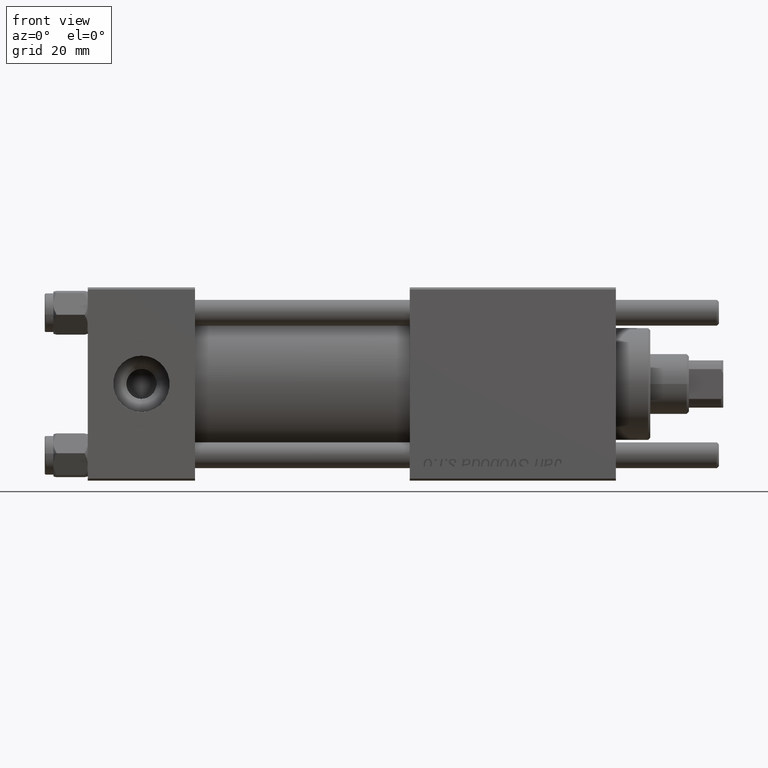
[diagram: clean part render]
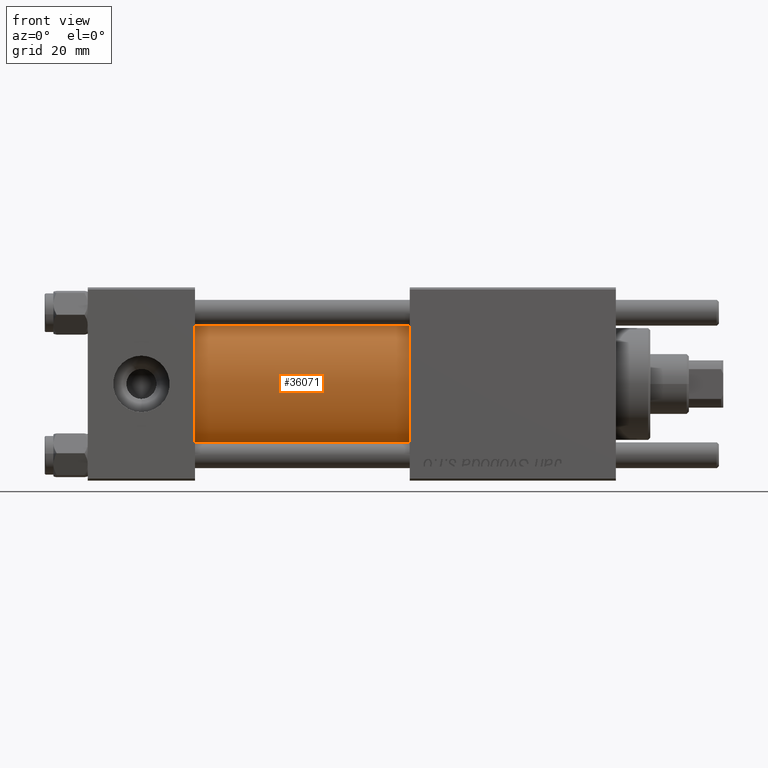
[diagram: same view with one face highlighted and labeled with its STEP entity id]
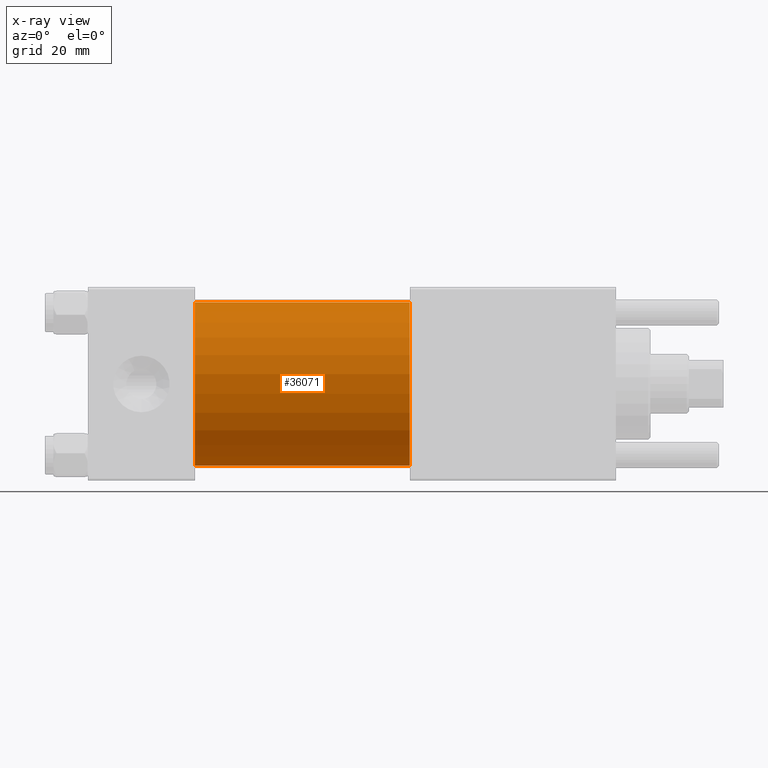
[diagram: x-ray of the same camera — body ghosted, the highlighted face saturated]
A machine part, front view. The second image highlights one B-rep face of the part: STEP entity #36071.
The next image is the same camera in x-ray: the body ghosted, the highlighted face saturated — about 0% of this face is hidden behind the body in this view.
In plain terms, the highlighted cylindrical surface (partial cylindrical patch) has radius 19 mm, axis along (-1, -0, -0).
Its self-contained STEP definition (entity closure, byte-faithful):
#199 = DIRECTION ( 'NONE',  ( 0.000000000000000000, 0.000000000000000000, -1.000000000000000000 ) ) ;
#1192 = LINE ( 'NONE', #52318, #31027 ) ;
#2859 = EDGE_CURVE ( 'NONE', #5742, #54957, #49726, .T. ) ;
#4439 = DIRECTION ( 'NONE',  ( 1.000000000000000000, -0.000000000000000000, 0.000000000000000000 ) ) ;
#5742 = VERTEX_POINT ( 'NONE', #26779 ) ;
#6560 = EDGE_LOOP ( 'NONE', ( #17048, #24978, #15754, #23804 ) ) ;
#8738 = CYLINDRICAL_SURFACE ( 'NONE', #53911, 19.00000000000000000 ) ;
#9027 = DIRECTION ( 'NONE',  ( -1.000000000000000000, -0.000000000000000000, -0.000000000000000000 ) ) ;
#11582 = CARTESIAN_POINT ( 'NONE',  ( 25.00000000000000000, -2.602085213965210642E-15, 19.00000000000000000 ) ) ;
#13894 = DIRECTION ( 'NONE',  ( 0.000000000000000000, 0.000000000000000000, 1.000000000000000000 ) ) ;
#15215 = CIRCLE ( 'NONE', #51882, 19.00000000000000000 ) ;
#15754 = ORIENTED_EDGE ( 'NONE', *, *, #50478, .T. ) ;
#17048 = ORIENTED_EDGE ( 'NONE', *, *, #2859, .F. ) ;
#19855 = DIRECTION ( 'NONE',  ( -1.000000000000000000, -0.000000000000000000, -0.000000000000000000 ) ) ;
#22446 = DIRECTION ( 'NONE',  ( -1.000000000000000000, -0.000000000000000000, -0.000000000000000000 ) ) ;
#23804 = ORIENTED_EDGE ( 'NONE', *, *, #24880, .T. ) ;
#23969 = EDGE_CURVE ( 'NONE', #37057, #5742, #15215, .T. ) ;
#24880 = EDGE_CURVE ( 'NONE', #44747, #54957, #38142, .T. ) ;
#24978 = ORIENTED_EDGE ( 'NONE', *, *, #23969, .F. ) ;
#25955 = FACE_OUTER_BOUND ( 'NONE', #6560, .T. ) ;
#26222 = VECTOR ( 'NONE', #19855, 1000.000000000000000 ) ;
#26236 = CARTESIAN_POINT ( 'NONE',  ( 75.00000000000001421, -2.602085213965210642E-15, 0.000000000000000000 ) ) ;
#26523 = DIRECTION ( 'NONE',  ( 0.000000000000000000, 0.000000000000000000, 1.000000000000000000 ) ) ;
#26779 = CARTESIAN_POINT ( 'NONE',  ( 75.00000000000001421, -2.752562955852396712E-16, -19.00000000000000000 ) ) ;
#31027 = VECTOR ( 'NONE', #22446, 1000.000000000000000 ) ;
#31194 = CARTESIAN_POINT ( 'NONE',  ( 75.00000000000001421, -2.602085213965210642E-15, 0.000000000000000000 ) ) ;
#34913 = DIRECTION ( 'NONE',  ( 1.000000000000000000, 0.000000000000000000, 0.000000000000000000 ) ) ;
#35566 = CARTESIAN_POINT ( 'NONE',  ( 25.00000000000000000, -2.752562955852396712E-16, -19.00000000000000000 ) ) ;
#36071 = ADVANCED_FACE ( 'NONE', ( #25955 ), #8738, .T. ) ;
#37057 = VERTEX_POINT ( 'NONE', #41508 ) ;
#38142 = CIRCLE ( 'NONE', #50077, 19.00000000000000000 ) ;
#40019 = CARTESIAN_POINT ( 'NONE',  ( 25.00000000000000000, -2.602085213965210642E-15, 0.000000000000000000 ) ) ;
#41508 = CARTESIAN_POINT ( 'NONE',  ( 75.00000000000001421, -2.602085213965210642E-15, 19.00000000000000000 ) ) ;
#44747 = VERTEX_POINT ( 'NONE', #11582 ) ;
#49726 = LINE ( 'NONE', #54896, #26222 ) ;
#50077 = AXIS2_PLACEMENT_3D ( 'NONE', #40019, #4439, #13894 ) ;
#50478 = EDGE_CURVE ( 'NONE', #37057, #44747, #1192, .T. ) ;
#51882 = AXIS2_PLACEMENT_3D ( 'NONE', #31194, #34913, #199 ) ;
#52318 = CARTESIAN_POINT ( 'NONE',  ( 75.00000000000001421, -2.602085213965210642E-15, 19.00000000000000000 ) ) ;
#53911 = AXIS2_PLACEMENT_3D ( 'NONE', #26236, #9027, #26523 ) ;
#54896 = CARTESIAN_POINT ( 'NONE',  ( 75.00000000000001421, -2.752562955852396712E-16, -19.00000000000000000 ) ) ;
#54957 = VERTEX_POINT ( 'NONE', #35566 ) ;